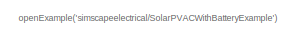
[diagram: root canvas - part 1/2, top left region]
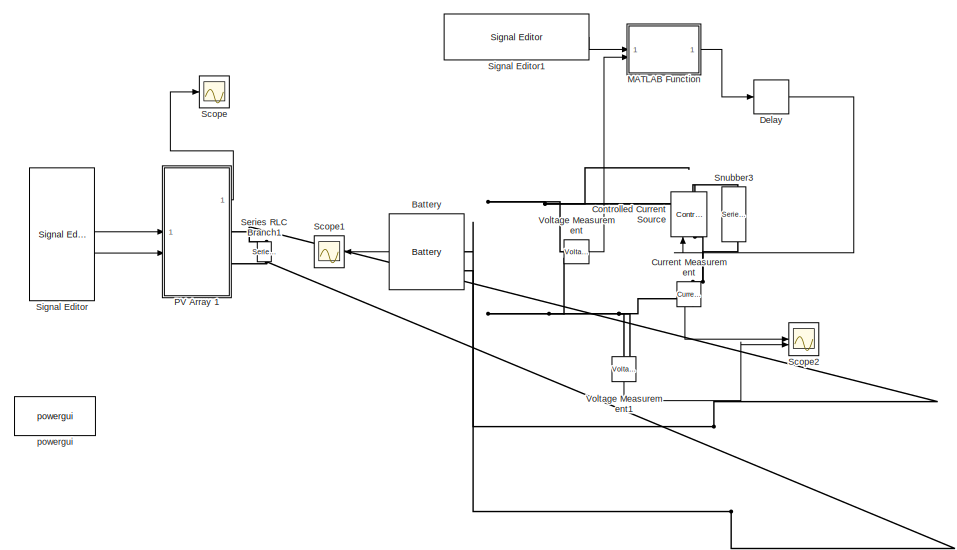
[diagram: root canvas - part 2/2, bottom right region]
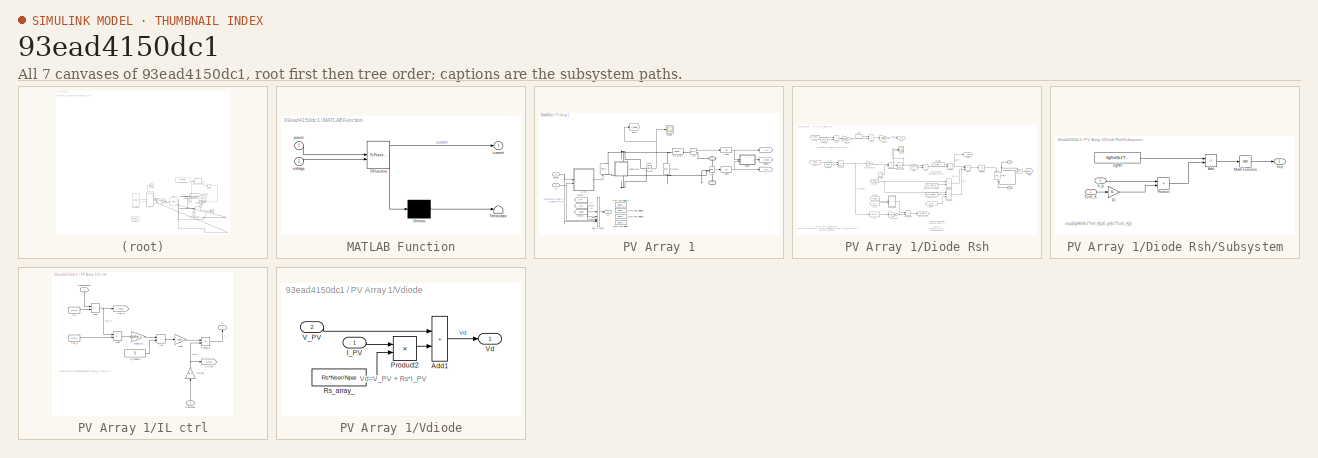
[diagram: thumbnail index - all 7 canvases of the model, root first then tree order]
MODEL slx_93ead4150dc1
KIND model
CONFIG AbsTol = auto
CONFIG EnableMultiTasking = off
CONFIG FixedStep = auto
CONFIG MaxStep = auto
CONFIG MinStep = auto
CONFIG RelTol = 1e-3
CONFIG SampleTimeConstraint = Unconstrained
CONFIG SolverName = VariableStepAuto
CONFIG StartTime = 0.0
CONFIG StopTime = 72
BLOCK [Reference] Battery  REF=spsBatteryLib/Battery
  LibrarySourceBlock = sps_lib/Sources/Battery
  SourceBlock = spsBatteryLib/Battery
  SourceType = Battery
BLOCK [Reference] Controlled Current Source  REF=spsControlledCurrentSourceLib/Controlled Current Source
  LibrarySourceBlock = sps_lib/Sources/Controlled Current Source
  SourceBlock = spsControlledCurrentSourceLib/Controlled Current Source
  SourceType = Controlled Current Source
BLOCK [Reference] Current Measurement  REF=spsCurrentMeasurementLib/Current Measurement
  LibrarySourceBlock = sps_lib/Sensors and Measurements/Current Measurement
  NameLocation = left
  SourceBlock = spsCurrentMeasurementLib/Current Measurement
  SourceType = Current Measurement
  UserDataPersistent = on
BLOCK [Delay] Delay
  DelayLength = 1
  InputPortMap = u0
BLOCK [SubSystem] MATLAB Function
  ErrorFcn = Stateflow.Translate.translate
  PermitHierarchicalResolution = ExplicitOnly
  SFBlockType = MATLAB Function
  TreatAsAtomicUnit = on
BLOCK [Demux] MATLAB Function/ Demux 
  Outputs = 1
BLOCK [S-Function] MATLAB Function/ SFunction 
  EnableBusSupport = on
  FunctionName = sf_sfun
  PortCounts = [2 2]
  SFcnIsStateOwnerBlock = off
  SFunctionDeploymentMode = off
  Tag = Stateflow S-Function 3
BLOCK [Terminator] MATLAB Function/ Terminator 
BLOCK [Outport] MATLAB Function/current
BLOCK [Inport] MATLAB Function/power
BLOCK [Inport] MATLAB Function/voltage
  Port = 2
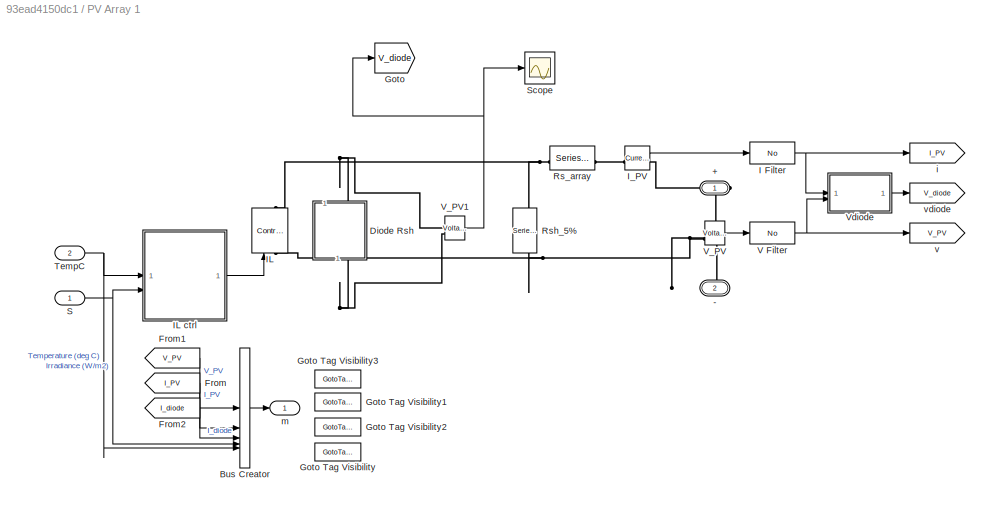
BLOCK [SubSystem] PV Array 1
  AncestorBlock = spsPVArrayLib/PV Array
  CloseFcn = sps_rtmsupport('CloseFcn',gcbh);
  Commented = on
  CopyFcn = sps_rtmsupport('CopyFcn',gcbh);
  DeleteFcn = sps_rtmsupport('DeleteFcn',gcbh);
  DialogController = POWERSYS.PowerSysDialog
  LoadFcn = sps_rtmsupport('LoadFcn',gcbh);
  ModelCloseFcn = sps_rtmsupport('ModelCloseFcn',gcbh);
  NameChangeFcn = sps_rtmsupport('NameChangeFcn',gcbh);
  OpenFcn = %assignin('base','PVMaskOpening',1);\n%open_system(gcb,'mask')\n%assignin('base','PVMaskOpening',0);\nsps_rtmsupport('OpenFcn',gcbh, [3 6 7 23]);
  PostSaveFcn = sps_rtmsupport('PostSaveFcn',gcbh);
  PreCopyFcn = sps_rtmsupport('PreCopyFcn',gcbh);
  PreDeleteFcn = sps_rtmsupport('PreDeleteFcn',gcbh);
  PreSaveFcn = sps_rtmsupport('PreSaveFcn',gcbh);
  StartFcn = sps_rtmsupport('StartFcn',gcbh);
  StopFcn = sps_rtmsupport('StopFcn',gcbh);
  UndoDeleteFcn = sps_rtmsupport('UndoDeleteFcn',gcbh);
BLOCK [PMIOPort] PV Array 1/+
  Side = Right
BLOCK [PMIOPort] PV Array 1/-
  Port = 2
  Side = Right
BLOCK [BusCreator] PV Array 1/Bus Creator
  DisplayOption = bar
  InheritFromInputs = on
  Inputs = 5
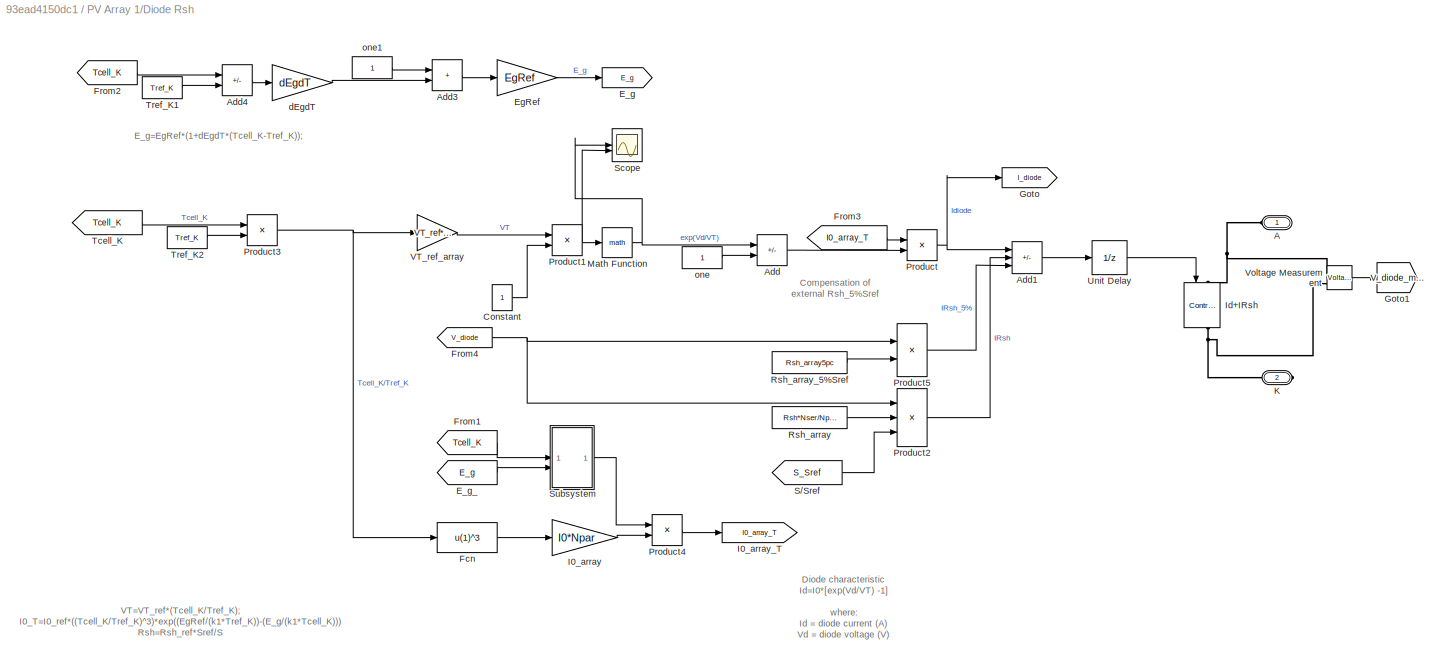
BLOCK [SubSystem] PV Array 1/Diode Rsh
  AncestorBlock = spsPVarrayModel/Discrete Diode Rsh BAL
  NameLocation = right
BLOCK [PMIOPort] PV Array 1/Diode Rsh/A
  Side = Left
BLOCK [Sum] PV Array 1/Diode Rsh/Add
  IconShape = rectangular
  Inputs = +-
BLOCK [Sum] PV Array 1/Diode Rsh/Add1
  IconShape = rectangular
  Inputs = ++-
BLOCK [Sum] PV Array 1/Diode Rsh/Add3
  IconShape = rectangular
BLOCK [Sum] PV Array 1/Diode Rsh/Add4
  IconShape = rectangular
  Inputs = +-
BLOCK [Constant] PV Array 1/Diode Rsh/Constant
BLOCK [Goto] PV Array 1/Diode Rsh/E_g
  GotoTag = E_g
BLOCK [From] PV Array 1/Diode Rsh/E_g_
  GotoTag = E_g
BLOCK [Gain] PV Array 1/Diode Rsh/EgRef
  Gain = EgRef
BLOCK [Fcn] PV Array 1/Diode Rsh/Fcn
  Expr = u(1)^3
BLOCK [From] PV Array 1/Diode Rsh/From1
  GotoTag = Tcell_K
  TagVisibility = scoped
BLOCK [From] PV Array 1/Diode Rsh/From2
  GotoTag = Tcell_K
  TagVisibility = scoped
BLOCK [From] PV Array 1/Diode Rsh/From3
  GotoTag = I0_array_T
BLOCK [From] PV Array 1/Diode Rsh/From4
  GotoTag = V_diode
  TagVisibility = scoped
BLOCK [Goto] PV Array 1/Diode Rsh/Goto
  GotoTag = I_diode
  TagVisibility = scoped
BLOCK [Goto] PV Array 1/Diode Rsh/Goto1
  GotoTag = V_diode_manual
  TagVisibility = global
BLOCK [Gain] PV Array 1/Diode Rsh/I0_array
  Gain = I0*Npar
BLOCK [Goto] PV Array 1/Diode Rsh/I0_array_T
  GotoTag = I0_array_T
BLOCK [Reference] PV Array 1/Diode Rsh/Id+IRsh  REF=spsControlledCurrentSourceLib/Controlled Current Source
  NameLocation = right
  SourceBlock = spsControlledCurrentSourceLib/Controlled Current Source
  SourceType = Controlled Current Source
BLOCK [PMIOPort] PV Array 1/Diode Rsh/K
  Port = 2
  Side = Right
BLOCK [Math] PV Array 1/Diode Rsh/Math Function
  SignedPower = on
BLOCK [Product] PV Array 1/Diode Rsh/Product
  RndMeth = Zero
BLOCK [Product] PV Array 1/Diode Rsh/Product1
  Inputs = /*
  RndMeth = Zero
BLOCK [Product] PV Array 1/Diode Rsh/Product2
  Inputs = */*
  RndMeth = Zero
BLOCK [Product] PV Array 1/Diode Rsh/Product3
  Inputs = */
  RndMeth = Zero
BLOCK [Product] PV Array 1/Diode Rsh/Product4
  Inputs = **
  RndMeth = Zero
BLOCK [Product] PV Array 1/Diode Rsh/Product5
  Inputs = */
  RndMeth = Zero
BLOCK [Constant] PV Array 1/Diode Rsh/Rsh_array
  Value = Rsh*Nser/Npar
BLOCK [Constant] PV Array 1/Diode Rsh/Rsh_array_5%Sref
  Value = Rsh_array5pc
BLOCK [From] PV Array 1/Diode Rsh/S//Sref
  GotoTag = S_Sref
  TagVisibility = scoped
BLOCK [Scope] PV Array 1/Diode Rsh/Scope
  Floating = off
  NumInputPorts = 2
  ScopeSpecificationString = Simulink.scopes.TimeScopeBlockCfg('CurrentConfiguration', extmgr.ConfigurationSet(extmgr.Configuration('Core','General UI',true),extmgr.Configuration('Core','Source UI',true),extmgr.Configuration('Sources','WiredSimulink',true,'DataLoggingVariableName','ScopeData4'),extmgr.Configuration('Visuals','Time Domain',true,'SerializedDisplays',{struct('MinYLimReal','0.01835','MaxYLimReal','1.29558','YLabe...<+1450ch>
BLOCK [SubSystem] PV Array 1/Diode Rsh/Subsystem
BLOCK [Sum] PV Array 1/Diode Rsh/Subsystem/Add
  IconShape = rectangular
  Inputs = +-
BLOCK [Inport] PV Array 1/Diode Rsh/Subsystem/E_g
  Port = 2
BLOCK [Constant] PV Array 1/Diode Rsh/Subsystem/EgRef
  Value = EgRef/(k1*Tref_K)
BLOCK [Math] PV Array 1/Diode Rsh/Subsystem/Math Function
  SignedPower = on
BLOCK [Product] PV Array 1/Diode Rsh/Subsystem/Product
  Inputs = */
BLOCK [Inport] PV Array 1/Diode Rsh/Subsystem/Tcell_K
BLOCK [Outport] PV Array 1/Diode Rsh/Subsystem/exp
  VectorParamsAs1DForOutWhenUnconnected = off
BLOCK [Gain] PV Array 1/Diode Rsh/Subsystem/k1
  Gain = k1
BLOCK [From] PV Array 1/Diode Rsh/Tcell_K
  GotoTag = Tcell_K
  TagVisibility = scoped
BLOCK [Constant] PV Array 1/Diode Rsh/Tref_K1
  Value = Tref_K
BLOCK [Constant] PV Array 1/Diode Rsh/Tref_K2
  Value = Tref_K
BLOCK [UnitDelay] PV Array 1/Diode Rsh/Unit Delay
  HasFrameUpgradeWarning = on
  SampleTime = Tsf
BLOCK [Gain] PV Array 1/Diode Rsh/VT_ref_array
  Gain = VT_ref*Nser
BLOCK [Reference] PV Array 1/Diode Rsh/Voltage Measurement  REF=spsVoltageMeasurementLib/Voltage Measurement
  LibrarySourceBlock = sps_lib/Sensors and Measurements/Voltage Measurement
  SourceBlock = spsVoltageMeasurementLib/Voltage Measurement
  SourceType = Voltage Measurement
  UserDataPersistent = on
BLOCK [Gain] PV Array 1/Diode Rsh/dEgdT
  Gain = dEgdT
BLOCK [Constant] PV Array 1/Diode Rsh/one
BLOCK [Constant] PV Array 1/Diode Rsh/one1
BLOCK [From] PV Array 1/From
  GotoTag = I_PV
BLOCK [From] PV Array 1/From1
  GotoTag = V_PV
BLOCK [From] PV Array 1/From2
  GotoTag = I_diode
  TagVisibility = scoped
BLOCK [Goto] PV Array 1/Goto
  GotoTag = V_diode
  TagVisibility = global
BLOCK [GotoTagVisibility] PV Array 1/Goto Tag Visibility
  GotoTag = S_Sref
BLOCK [GotoTagVisibility] PV Array 1/Goto Tag Visibility1
  GotoTag = I_diode
BLOCK [GotoTagVisibility] PV Array 1/Goto Tag Visibility2
  GotoTag = Tcell_K
BLOCK [GotoTagVisibility] PV Array 1/Goto Tag Visibility3
  GotoTag = V_diode
BLOCK [Reference] PV Array 1/I Filter  REF=spsPVarrayModel/No
  NameLocation = top
  SourceBlock = spsPVarrayModel/No
  SourceType = SubSystem
BLOCK [Reference] PV Array 1/IL  REF=spsControlledCurrentSourceLib/Controlled Current Source
  NameLocation = left
  SourceBlock = spsControlledCurrentSourceLib/Controlled Current Source
  SourceType = Controlled Current Source
BLOCK [SubSystem] PV Array 1/IL ctrl
BLOCK [Constant] PV Array 1/IL ctrl/0_K
  Value = 273.15
BLOCK [Gain] PV Array 1/IL ctrl/1//Sref
  Gain = 1e-3
  NameLocation = right
BLOCK [Sum] PV Array 1/IL ctrl/Add
  IconShape = rectangular
BLOCK [Sum] PV Array 1/IL ctrl/Add2
  IconShape = rectangular
BLOCK [Sum] PV Array 1/IL ctrl/Add3
  IconShape = rectangular
  Inputs = +-
BLOCK [Outport] PV Array 1/IL ctrl/IL
  NameLocation = right
  VectorParamsAs1DForOutWhenUnconnected = off
BLOCK [Constant] PV Array 1/IL ctrl/IL_module
  Value = IL
BLOCK [Inport] PV Array 1/IL ctrl/Irradiance
  NameLocation = right
  Port = 2
BLOCK [Gain] PV Array 1/IL ctrl/Npar
  Gain = Npar
BLOCK [Product] PV Array 1/IL ctrl/Product1
  Inputs = **
  RndMeth = Zero
BLOCK [Goto] PV Array 1/IL ctrl/S//Sref
  GotoTag = S_Sref
  TagVisibility = scoped
BLOCK [Goto] PV Array 1/IL ctrl/Tcell_K
  GotoTag = Tcell_K
  TagVisibility = scoped
BLOCK [Inport] PV Array 1/IL ctrl/Temperature
  NameLocation = right
BLOCK [Constant] PV Array 1/IL ctrl/Tref_K
  Value = Tref_K
BLOCK [Gain] PV Array 1/IL ctrl/alpha_Isc
  Gain = alpha_Isc
BLOCK [Reference] PV Array 1/I_PV  REF=spsCurrentMeasurementLib/Current Measurement
  SourceBlock = spsCurrentMeasurementLib/Current Measurement
  SourceType = Current Measurement
BLOCK [Reference] PV Array 1/Rs_array  REF=spsSeriesRLCBranchLib/Series RLC Branch
  SourceBlock = spsSeriesRLCBranchLib/Series RLC Branch
  SourceType = Series RLC Branch
BLOCK [Reference] PV Array 1/Rsh_5%  REF=spsSeriesRLCBranchLib/Series RLC Branch
  NameLocation = right
  SourceBlock = spsSeriesRLCBranchLib/Series RLC Branch
  SourceType = Series RLC Branch
BLOCK [Inport] PV Array 1/S
BLOCK [Scope] PV Array 1/Scope
  Floating = off
  NumInputPorts = 1
  ScopeSpecificationString = Simulink.scopes.TimeScopeBlockCfg('CurrentConfiguration', extmgr.ConfigurationSet(extmgr.Configuration('Core','General UI',true),extmgr.Configuration('Core','Source UI',true),extmgr.Configuration('Sources','WiredSimulink',true,'DataLoggingVariableName','ScopeData3'),extmgr.Configuration('Visuals','Time Domain',true,'SerializedDisplays',{struct('MinYLimReal','-78.46687','MaxYLimReal','699.79648','Y...<+1403ch>
BLOCK [Inport] PV Array 1/TempC
  Port = 2
BLOCK [Reference] PV Array 1/V Filter  REF=spsPVarrayModel/No
  SourceBlock = spsPVarrayModel/No
  SourceType = SubSystem
BLOCK [Reference] PV Array 1/V_PV  REF=spsVoltageMeasurementLib/Voltage Measurement
  SourceBlock = spsVoltageMeasurementLib/Voltage Measurement
  SourceType = Voltage Measurement
BLOCK [Reference] PV Array 1/V_PV1  REF=spsVoltageMeasurementLib/Voltage Measurement
  SourceBlock = spsVoltageMeasurementLib/Voltage Measurement
  SourceType = Voltage Measurement
BLOCK [SubSystem] PV Array 1/Vdiode
BLOCK [Sum] PV Array 1/Vdiode/Add1
  IconShape = rectangular
BLOCK [Inport] PV Array 1/Vdiode/I_PV
BLOCK [Product] PV Array 1/Vdiode/Product2
  Inputs = **
  RndMeth = Zero
BLOCK [Constant] PV Array 1/Vdiode/Rs_array_
  Value = Rs*Nser/Npar
BLOCK [Inport] PV Array 1/Vdiode/V_PV
  Port = 2
BLOCK [Outport] PV Array 1/Vdiode/Vd
  VectorParamsAs1DForOutWhenUnconnected = off
BLOCK [Goto] PV Array 1/i
  GotoTag = I_PV
  NameLocation = top
BLOCK [Outport] PV Array 1/m
  VectorParamsAs1DForOutWhenUnconnected = off
BLOCK [Goto] PV Array 1/v
  GotoTag = V_PV
BLOCK [Goto] PV Array 1/vdiode
  GotoTag = V_diode
  TagVisibility = scoped
BLOCK [Scope] Scope
  Commented = on
  Floating = off
  NumInputPorts = 1
  ScopeSpecificationString = Simulink.scopes.TimeScopeBlockCfg('CurrentConfiguration', extmgr.ConfigurationSet(extmgr.Configuration('Core','General UI',true),extmgr.Configuration('Core','Source UI',true),extmgr.Configuration('Sources','WiredSimulink',true,'DataLoggingVariableName','ScopeData1'),extmgr.Configuration('Visuals','Time Domain',true,'SerializedDisplays',{struct('MinYLimReal','-125.70344','MaxYLimReal','1125.07816',...<+1661ch>
BLOCK [Scope] Scope1
  Floating = off
  NameLocation = top
  NumInputPorts = 1
  ScopeSpecificationString = Simulink.scopes.TimeScopeBlockCfg('CurrentConfiguration', extmgr.ConfigurationSet(extmgr.Configuration('Core','General UI',true),extmgr.Configuration('Core','Source UI',true),extmgr.Configuration('Sources','WiredSimulink',true,'DataLoggingVariableName','ScopeData2'),extmgr.Configuration('Visuals','Time Domain',true,'SerializedDisplays',{struct('MinYLimReal','-316.40601','MaxYLimReal','202.76062','...<+1458ch>
BLOCK [Scope] Scope2
  Floating = off
  NumInputPorts = 2
  ScopeSpecificationString = Simulink.scopes.TimeScopeBlockCfg('CurrentConfiguration', extmgr.ConfigurationSet(extmgr.Configuration('Core','General UI',true),extmgr.Configuration('Core','Source UI',true),extmgr.Configuration('Sources','WiredSimulink',true,'DataLoggingVariableName','ScopeData3'),extmgr.Configuration('Visuals','Time Domain',true,'SerializedDisplays',{struct('MinYLimReal','-297.55052','MaxYLimReal','33.06126','Y...<+1441ch>
BLOCK [Reference] Series RLC Branch1  REF=spsSeriesRLCBranchLib/Series RLC Branch
  Commented = on
  NameLocation = right
  SourceBlock = spsSeriesRLCBranchLib/Series RLC Branch
  SourceType = Series RLC Branch
BLOCK [Reference] Signal Editor  REF=SignalEditorBlockLib/Signal Editor
  Commented = on
  LibrarySourceBlock = simulink/Sources/Signal Editor
  SourceBlock = SignalEditorBlockLib/Signal Editor
  SourceType = SignalEditor
  UserDataPersistent = on
BLOCK [Reference] Signal Editor1  REF=SignalEditorBlockLib/Signal Editor
  LibrarySourceBlock = simulink/Sources/Signal Editor
  SourceBlock = SignalEditorBlockLib/Signal Editor
  SourceType = SignalEditor
  UserDataPersistent = on
BLOCK [Reference] Snubber3  REF=spsSeriesRLCBranchLib/Series RLC Branch
  NameLocation = right
  SourceBlock = spsSeriesRLCBranchLib/Series RLC Branch
  SourceType = Series RLC Branch
BLOCK [Reference] Voltage Measurement  REF=spsVoltageMeasurementLib/Voltage Measurement
  LibrarySourceBlock = sps_lib/Sensors and Measurements/Voltage Measurement
  SourceBlock = spsVoltageMeasurementLib/Voltage Measurement
  SourceType = Voltage Measurement
  UserDataPersistent = on
BLOCK [Reference] Voltage Measurement1  REF=spsVoltageMeasurementLib/Voltage Measurement
  LibrarySourceBlock = sps_lib/Sensors and Measurements/Voltage Measurement
  NameLocation = left
  SourceBlock = spsVoltageMeasurementLib/Voltage Measurement
  SourceType = Voltage Measurement
  UserDataPersistent = on
BLOCK [Reference] powergui  REF=sps_lib/powergui
  LibrarySourceBlock = sps_lib/powergui
  Priority = 1
  SourceBlock = sps_lib/powergui
  SourceType = PSB option menu block
ANNOTATION (root): openExample('simscapeelectrical/SolarPVACWithBatteryExample')
ANNOTATION PV Array 1/Diode Rsh: Compensation of external Rsh_5%Sref
ANNOTATION PV Array 1/Diode Rsh: Diode characteristic Id=I0*[exp(Vd/VT) -1] where: Id = diode current (A) Vd = diode voltage (V) I0 = diode saturation current (A) VT = temperature voltage = k*Tcell_K/q*nI*Ncell*Nser Tcell_K = cell temperature (K), k = Boltzman constant = 1.3806e-23 J.K^-1 q = electron charge = 1.6022e-19 C nI = diode ideality factor Ncell= number of series-connected cells per module Nser = number of series-connec...<+22ch>
ANNOTATION PV Array 1/Diode Rsh: E_g=EgRef*(1+dEgdT*(Tcell_K-Tref_K));
ANNOTATION PV Array 1/Diode Rsh: VT=VT_ref*(Tcell_K/Tref_K); I0_T=I0_ref*((Tcell_K/Tref_K)^3)*exp((EgRef/(k1*Tref_K))-(E_g/(k1*Tcell_K))) Rsh=Rsh_ref*Sref/S
ANNOTATION PV Array 1/Diode Rsh/Subsystem: exp((EgRef/(k1*Tref_K))-(E_g/(k1*Tcell_K)))
ANNOTATION PV Array 1/IL ctrl: IL=S/Sref*(IL_ref+alpha_isc*(Tcell_K-Tref_K));
ANNOTATION PV Array 1/Vdiode: Vd=V_PV + Rs*I_PV
LINE Battery:1 -> Scope1:1
LINE Current Measurement:1 -> Scope2:1
LINE Delay:1 -> Controlled Current Source:1
LINE MATLAB Function:1 -> Delay:1
LINE PV Array 1:1 -> Scope:1
LINE Signal Editor1:1 -> MATLAB Function:1
LINE Signal Editor:1 -> PV Array 1:1
LINE Signal Editor:2 -> PV Array 1:2
LINE Voltage Measurement1:1 -> Scope2:2
LINE Voltage Measurement:1 -> MATLAB Function:2
PNET net1: Battery:LConn1 -- Controlled Current Source:RConn1 -- PV Array 1:RConn1 -- Series RLC Branch1:RConn1 -- Snubber3:LConn1 -- Voltage Measurement:LConn1
PNET net2: Battery:LConn2 -- Current Measurement:RConn1 -- PV Array 1:RConn2 -- Series RLC Branch1:LConn1 -- Voltage Measurement1:LConn1 -- Voltage Measurement1:LConn2 -- Voltage Measurement:LConn2
PNET net3: Controlled Current Source:LConn1 -- Current Measurement:LConn1 -- Snubber3:RConn1
note: PNET lines group multi-terminal physical nets as a canonical sorted terminal list (undirected conserving connections); 2-terminal nets keep the pairwise PLINE form
CHART MATLAB Function states=1 transitions=1
  STATE_LABEL 'eML_blk_kernel()'
  STATE_LABEL 'SCRIPT:\nfunction current = fcn(power,voltage)\n\n\ncurrent = (power/voltage);'
CHART  states=0 transitions=0
